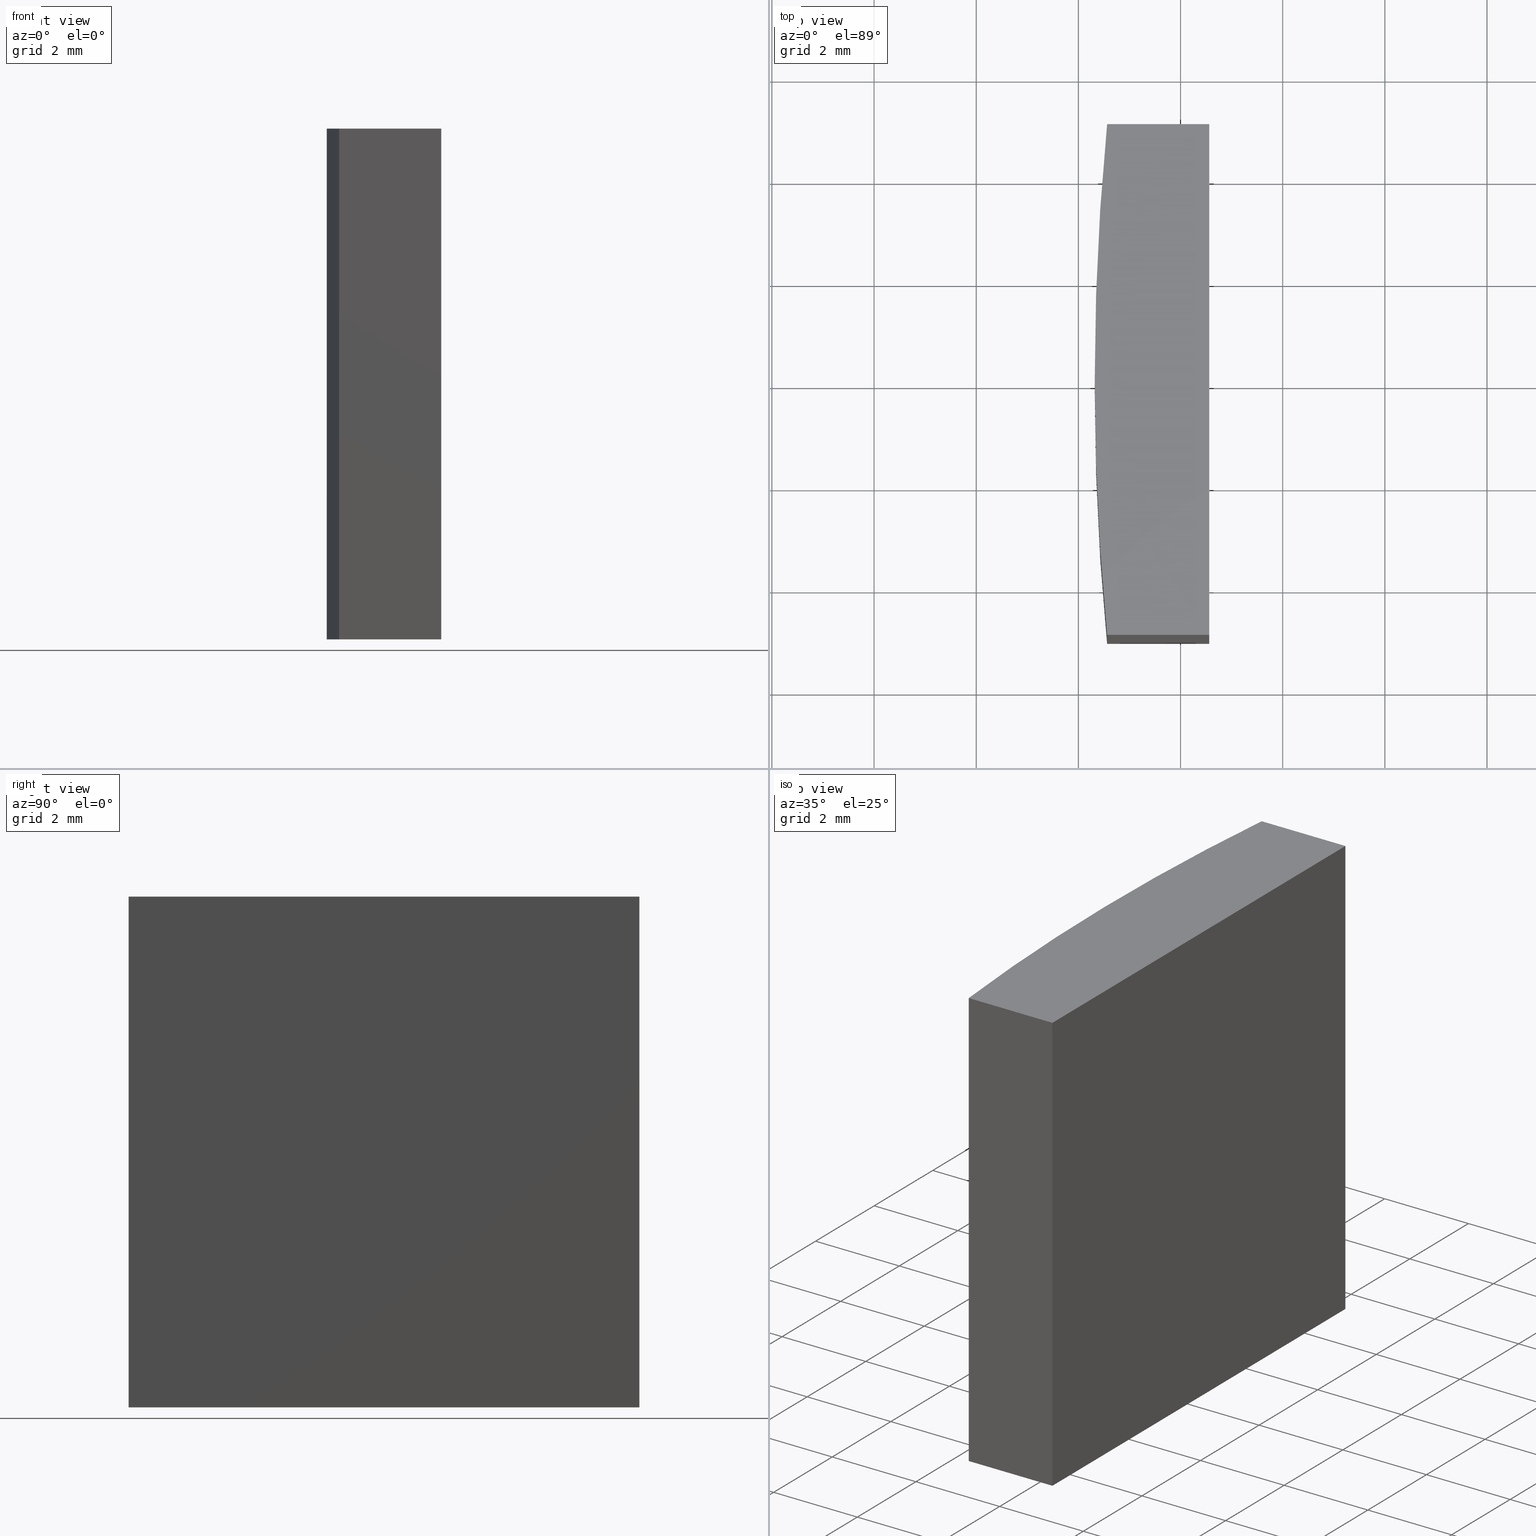
[diagram: canonical four-view strip — front | top / right | iso, engineering-drawing reading convention]
A machine part, canonical four-view strip (front | top / right | iso — engineering-drawing reading convention). The complete STEP part file that produces these views, byte-faithful:
ISO-10303-21;
HEADER;
FILE_DESCRIPTION (( 'STEP AP203' ),
    '1' );
FILE_NAME ('155522.STEP',
    '2024-05-13T03:08:03',
    ( '' ),
    ( '' ),
    'SwSTEP 2.0',
    'SolidWorks 2020',
    '' );
FILE_SCHEMA (( 'CONFIG_CONTROL_DESIGN' ));
ENDSEC;

DATA;
#1 = EDGE_CURVE ( 'NONE', #37, #246, #183, .T. ) ;
#2 = VECTOR ( 'NONE', #259, 1000.000000000000000 ) ;
#3 = AXIS2_PLACEMENT_3D ( 'NONE', #217, #176, #85 ) ;
#4 = CARTESIAN_POINT ( 'NONE',  ( -51.43755826242143314, -5.000000000000000888, 10.00000000000000000 ) ) ;
#5 = CC_DESIGN_PERSON_AND_ORGANIZATION_ASSIGNMENT ( #114, #35, ( #274 ) ) ;
#6 = LINE ( 'NONE', #200, #148 ) ;
#7 = CARTESIAN_POINT ( 'NONE',  ( -51.67999999999999972, 0.000000000000000000, 10.00000000000000000 ) ) ;
#8 = AXIS2_PLACEMENT_3D ( 'NONE', #173, #63, #89 ) ;
#9 = CARTESIAN_POINT ( 'NONE',  ( 0.000000000000000000, 0.000000000000000000, 10.00000000000000000 ) ) ;
#10 = APPROVAL_ROLE ( '' ) ;
#11 = DIRECTION ( 'NONE',  ( -0.000000000000000000, -0.000000000000000000, -1.000000000000000000 ) ) ;
#12 = DATE_TIME_ROLE ( 'classification_date' ) ;
#13 = EDGE_LOOP ( 'NONE', ( #121, #253, #58, #181 ) ) ;
#14 = PERSON_AND_ORGANIZATION ( #196, #210 ) ;
#15 = ORIENTED_EDGE ( 'NONE', *, *, #216, .T. ) ;
#16 = ORIENTED_EDGE ( 'NONE', *, *, #139, .T. ) ;
#17 = DATE_TIME_ROLE ( 'creation_date' ) ;
#18 = VERTEX_POINT ( 'NONE', #145 ) ;
#19 = CC_DESIGN_APPROVAL ( #254, ( #56 ) ) ;
#20 = ADVANCED_BREP_SHAPE_REPRESENTATION ( '155522', ( #47, #23 ), #68 ) ;
#21 = DIRECTION ( 'NONE',  ( 0.000000000000000000, 0.000000000000000000, 1.000000000000000000 ) ) ;
#22 = APPROVAL ( #161, 'δָ��' ) ;
#23 = AXIS2_PLACEMENT_3D ( 'NONE', #227, #21, #103 ) ;
#24 = LINE ( 'NONE', #4, #99 ) ;
#25 = CARTESIAN_POINT ( 'NONE',  ( -51.43755826242143314, 5.000000000000000888, 10.00000000000000000 ) ) ;
#26 = CARTESIAN_POINT ( 'NONE',  ( 0.000000000000000000, 0.000000000000000000, 10.00000000000000000 ) ) ;
#27 = PLANE ( 'NONE',  #250 ) ;
#28 = CALENDAR_DATE ( 2024, 13, 5 ) ;
#29 = CARTESIAN_POINT ( 'NONE',  ( -51.43755826242143314, 5.000000000000000888, 10.00000000000000000 ) ) ;
#30 = ADVANCED_FACE ( 'NONE', ( #53 ), #198, .T. ) ;
#31 = CALENDAR_DATE ( 2024, 13, 5 ) ;
#32 = EDGE_LOOP ( 'NONE', ( #168, #73, #206, #243 ) ) ;
#33 = ORIENTED_EDGE ( 'NONE', *, *, #216, .F. ) ;
#34 = LOCAL_TIME ( 11, 8, 3.000000000000000000, #122 ) ;
#35 = PERSON_AND_ORGANIZATION_ROLE ( 'creator' ) ;
#36 = ADVANCED_FACE ( 'NONE', ( #110 ), #174, .F. ) ;
#37 = VERTEX_POINT ( 'NONE', #48 ) ;
#38 = DATE_AND_TIME ( #31, #249 ) ;
#39 = ORIENTED_EDGE ( 'NONE', *, *, #65, .F. ) ;
#40 = EDGE_CURVE ( 'NONE', #105, #76, #203, .T. ) ;
#41 = CARTESIAN_POINT ( 'NONE',  ( -51.43755826242143314, -5.000000000000000888, 10.00000000000000000 ) ) ;
#42 = DIRECTION ( 'NONE',  ( 0.000000000000000000, 0.000000000000000000, 1.000000000000000000 ) ) ;
#43 = VECTOR ( 'NONE', #52, 1000.000000000000000 ) ;
#44 = CARTESIAN_POINT ( 'NONE',  ( -51.43755826242143314, 5.000000000000000888, 0.000000000000000000 ) ) ;
#45 = EDGE_CURVE ( 'NONE', #271, #140, #160, .T. ) ;
#46 = FACE_OUTER_BOUND ( 'NONE', #266, .T. ) ;
#47 = MANIFOLD_SOLID_BREP ( '͹̨-����1', #111 ) ;
#48 = CARTESIAN_POINT ( 'NONE',  ( -49.43755826242143314, 5.000000000000000888, 10.00000000000000000 ) ) ;
#49 = EDGE_CURVE ( 'NONE', #76, #207, #213, .T. ) ;
#50 = DIRECTION ( 'NONE',  ( 1.000000000000000000, 0.000000000000000000, 0.000000000000000000 ) ) ;
#51 = APPROVAL_STATUS ( 'not_yet_approved' ) ;
#52 = DIRECTION ( 'NONE',  ( -0.000000000000000000, 1.000000000000000000, -0.000000000000000000 ) ) ;
#53 = FACE_OUTER_BOUND ( 'NONE', #91, .T. ) ;
#54 = EDGE_CURVE ( 'NONE', #271, #105, #129, .T. ) ;
#55 = ORIENTED_EDGE ( 'NONE', *, *, #45, .T. ) ;
#56 = PRODUCT_DEFINITION_FORMATION_WITH_SPECIFIED_SOURCE ( '�κ�', '', #187, .NOT_KNOWN. ) ;
#57 = APPROVAL_DATE_TIME ( #223, #22 ) ;
#58 = ORIENTED_EDGE ( 'NONE', *, *, #257, .F. ) ;
#59 =( LENGTH_UNIT ( ) NAMED_UNIT ( * ) SI_UNIT ( .MILLI., .METRE. ) );
#60 = LINE ( 'NONE', #167, #131 ) ;
#61 = VECTOR ( 'NONE', #78, 1000.000000000000000 ) ;
#62 = DIRECTION ( 'NONE',  ( -1.000000000000000000, 0.000000000000000000, 0.000000000000000000 ) ) ;
#63 = DIRECTION ( 'NONE',  ( 0.000000000000000000, 0.000000000000000000, 1.000000000000000000 ) ) ;
#64 = CARTESIAN_POINT ( 'NONE',  ( -49.43755826242143314, -5.000000000000000888, 0.000000000000000000 ) ) ;
#65 = EDGE_CURVE ( 'NONE', #18, #267, #24, .T. ) ;
#66 = DIRECTION ( 'NONE',  ( 0.000000000000000000, 1.000000000000000000, 0.000000000000000000 ) ) ;
#67 = APPROVAL_STATUS ( 'not_yet_approved' ) ;
#68 =( GEOMETRIC_REPRESENTATION_CONTEXT ( 3 ) GLOBAL_UNCERTAINTY_ASSIGNED_CONTEXT ( ( #272 ) ) GLOBAL_UNIT_ASSIGNED_CONTEXT ( ( #59, #273, #170 ) ) REPRESENTATION_CONTEXT ( 'NONE', 'WORKASPACE' ) );
#69 = CARTESIAN_POINT ( 'NONE',  ( -49.43755826242143314, 5.000000000000000888, 10.00000000000000000 ) ) ;
#70 = AXIS2_PLACEMENT_3D ( 'NONE', #9, #152, #134 ) ;
#71 = APPROVAL_DATE_TIME ( #219, #254 ) ;
#72 = ORIENTED_EDGE ( 'NONE', *, *, #124, .T. ) ;
#73 = ORIENTED_EDGE ( 'NONE', *, *, #45, .F. ) ;
#74 = ORIENTED_EDGE ( 'NONE', *, *, #139, .F. ) ;
#75 = LOCAL_TIME ( 11, 8, 3.000000000000000000, #265 ) ;
#76 = VERTEX_POINT ( 'NONE', #108 ) ;
#77 = ADVANCED_FACE ( 'NONE', ( #46 ), #154, .T. ) ;
#78 = DIRECTION ( 'NONE',  ( -0.000000000000000000, -0.000000000000000000, -1.000000000000000000 ) ) ;
#79 = MECHANICAL_CONTEXT ( 'NONE', #109, 'mechanical' ) ;
#80 = PRODUCT_RELATED_PRODUCT_CATEGORY ( 'detail', '', ( #187 ) ) ;
#81 = ADVANCED_FACE ( 'NONE', ( #218 ), #153, .F. ) ;
#82 = DIRECTION ( 'NONE',  ( 1.000000000000000000, 0.000000000000000000, 0.000000000000000000 ) ) ;
#83 = DIRECTION ( 'NONE',  ( -1.000000000000000000, -0.000000000000000000, -0.000000000000000000 ) ) ;
#84 = DESIGN_CONTEXT ( 'detailed design', #231, 'design' ) ;
#85 = DIRECTION ( 'NONE',  ( 1.000000000000000000, 0.000000000000000000, 0.000000000000000000 ) ) ;
#86 = CC_DESIGN_PERSON_AND_ORGANIZATION_ASSIGNMENT ( #101, #169, ( #187 ) ) ;
#87 = CARTESIAN_POINT ( 'NONE',  ( -51.43755826242143314, -5.000000000000000888, 0.000000000000000000 ) ) ;
#88 = COORDINATED_UNIVERSAL_TIME_OFFSET ( 8, 0, .AHEAD. ) ;
#89 = DIRECTION ( 'NONE',  ( 1.000000000000000000, 0.000000000000000000, 0.000000000000000000 ) ) ;
#90 = APPROVAL_PERSON_ORGANIZATION ( #191, #22, #221 ) ;
#91 = EDGE_LOOP ( 'NONE', ( #189, #72, #162, #115, #220 ) ) ;
#92 = COORDINATED_UNIVERSAL_TIME_OFFSET ( 8, 0, .AHEAD. ) ;
#93 = CC_DESIGN_DATE_AND_TIME_ASSIGNMENT ( #38, #12, ( #130 ) ) ;
#94 = VERTEX_POINT ( 'NONE', #64 ) ;
#95 = PRODUCT_DEFINITION_SHAPE ( 'NONE', 'NONE',  #274 ) ;
#96 = DIRECTION ( 'NONE',  ( -0.000000000000000000, -0.000000000000000000, -1.000000000000000000 ) ) ;
#97 = DIRECTION ( 'NONE',  ( -0.000000000000000000, 1.000000000000000000, -0.000000000000000000 ) ) ;
#98 = EDGE_LOOP ( 'NONE', ( #120, #224, #143, #74, #209 ) ) ;
#99 = VECTOR ( 'NONE', #82, 1000.000000000000000 ) ;
#100 = EDGE_CURVE ( 'NONE', #94, #246, #112, .T. ) ;
#101 = PERSON_AND_ORGANIZATION ( #196, #210 ) ;
#102 = APPLICATION_PROTOCOL_DEFINITION ( 'international standard', 'config_control_design', 1994, #231 ) ;
#103 = DIRECTION ( 'NONE',  ( 1.000000000000000000, 0.000000000000000000, 0.000000000000000000 ) ) ;
#104 = LOCAL_TIME ( 11, 8, 3.000000000000000000, #117 ) ;
#105 = VERTEX_POINT ( 'NONE', #255 ) ;
#106 = VECTOR ( 'NONE', #215, 1000.000000000000000 ) ;
#107 = DIRECTION ( 'NONE',  ( 1.000000000000000000, 0.000000000000000000, -0.000000000000000000 ) ) ;
#108 = CARTESIAN_POINT ( 'NONE',  ( -51.67999999999999972, 0.000000000000000000, 0.000000000000000000 ) ) ;
#109 = APPLICATION_CONTEXT ( 'configuration controlled 3d designs of mechanical parts and assemblies' ) ;
#110 = FACE_OUTER_BOUND ( 'NONE', #32, .T. ) ;
#111 = CLOSED_SHELL ( 'NONE', ( #144, #77, #81, #116, #36, #30, #268 ) ) ;
#112 = LINE ( 'NONE', #234, #43 ) ;
#113 = DIRECTION ( 'NONE',  ( 0.000000000000000000, -1.000000000000000000, 0.000000000000000000 ) ) ;
#114 = PERSON_AND_ORGANIZATION ( #196, #210 ) ;
#115 = ORIENTED_EDGE ( 'NONE', *, *, #257, .T. ) ;
#116 = ADVANCED_FACE ( 'NONE', ( #261 ), #27, .F. ) ;
#117 = COORDINATED_UNIVERSAL_TIME_OFFSET ( 8, 0, .AHEAD. ) ;
#118 = ORIENTED_EDGE ( 'NONE', *, *, #49, .T. ) ;
#119 = DATE_AND_TIME ( #28, #75 ) ;
#120 = ORIENTED_EDGE ( 'NONE', *, *, #193, .F. ) ;
#121 = ORIENTED_EDGE ( 'NONE', *, *, #100, .T. ) ;
#122 = COORDINATED_UNIVERSAL_TIME_OFFSET ( 8, 0, .AHEAD. ) ;
#123 = ORIENTED_EDGE ( 'NONE', *, *, #124, .F. ) ;
#124 = EDGE_CURVE ( 'NONE', #105, #18, #197, .T. ) ;
#125 = APPLICATION_PROTOCOL_DEFINITION ( 'international standard', 'config_control_design', 1994, #109 ) ;
#126 = APPROVAL_PERSON_ORGANIZATION ( #205, #254, #141 ) ;
#127 = AXIS2_PLACEMENT_3D ( 'NONE', #29, #113, #233 ) ;
#128 = CARTESIAN_POINT ( 'NONE',  ( -49.43755826242143314, 5.000000000000000888, 0.000000000000000000 ) ) ;
#129 = CIRCLE ( 'NONE', #3, 51.67999999999999972 ) ;
#130 = SECURITY_CLASSIFICATION ( '', '', #240 ) ;
#131 = VECTOR ( 'NONE', #97, 1000.000000000000000 ) ;
#132 = FACE_OUTER_BOUND ( 'NONE', #164, .T. ) ;
#133 = EDGE_CURVE ( 'NONE', #37, #271, #232, .T. ) ;
#134 = DIRECTION ( 'NONE',  ( 1.000000000000000000, 0.000000000000000000, 0.000000000000000000 ) ) ;
#135 = CARTESIAN_POINT ( 'NONE',  ( -51.43755826242143314, 5.000000000000000888, 10.00000000000000000 ) ) ;
#136 = CYLINDRICAL_SURFACE ( 'NONE', #262, 51.67999999999999972 ) ;
#137 = PERSON_AND_ORGANIZATION_ROLE ( 'design_supplier' ) ;
#138 = DIRECTION ( 'NONE',  ( 0.000000000000000000, 0.000000000000000000, 1.000000000000000000 ) ) ;
#139 = EDGE_CURVE ( 'NONE', #207, #94, #239, .T. ) ;
#140 = VERTEX_POINT ( 'NONE', #44 ) ;
#141 = APPROVAL_ROLE ( '' ) ;
#142 = APPROVAL_PERSON_ORGANIZATION ( #182, #212, #10 ) ;
#143 = ORIENTED_EDGE ( 'NONE', *, *, #100, .F. ) ;
#144 = ADVANCED_FACE ( 'NONE', ( #132 ), #136, .T. ) ;
#145 = CARTESIAN_POINT ( 'NONE',  ( -51.43755826242143314, -5.000000000000000888, 10.00000000000000000 ) ) ;
#146 = LINE ( 'NONE', #41, #61 ) ;
#147 = VECTOR ( 'NONE', #269, 1000.000000000000000 ) ;
#148 = VECTOR ( 'NONE', #83, 1000.000000000000000 ) ;
#149 = LINE ( 'NONE', #171, #147 ) ;
#150 = DIRECTION ( 'NONE',  ( 1.000000000000000000, 0.000000000000000000, -0.000000000000000000 ) ) ;
#151 = EDGE_CURVE ( 'NONE', #246, #140, #6, .T. ) ;
#152 = DIRECTION ( 'NONE',  ( 0.000000000000000000, 0.000000000000000000, 1.000000000000000000 ) ) ;
#153 = PLANE ( 'NONE',  #158 ) ;
#154 = CYLINDRICAL_SURFACE ( 'NONE', #166, 51.67999999999999972 ) ;
#155 = DIRECTION ( 'NONE',  ( 0.000000000000000000, 0.000000000000000000, 1.000000000000000000 ) ) ;
#156 = CIRCLE ( 'NONE', #201, 51.67999999999999972 ) ;
#157 = CALENDAR_DATE ( 2024, 13, 5 ) ;
#158 = AXIS2_PLACEMENT_3D ( 'NONE', #178, #66, #258 ) ;
#159 = CC_DESIGN_PERSON_AND_ORGANIZATION_ASSIGNMENT ( #175, #137, ( #56 ) ) ;
#160 = LINE ( 'NONE', #135, #228 ) ;
#161 = APPROVAL_STATUS ( 'not_yet_approved' ) ;
#162 = ORIENTED_EDGE ( 'NONE', *, *, #65, .T. ) ;
#163 = APPROVAL_DATE_TIME ( #119, #212 ) ;
#164 = EDGE_LOOP ( 'NONE', ( #123, #222, #118, #33 ) ) ;
#165 = ORIENTED_EDGE ( 'NONE', *, *, #252, .F. ) ;
#166 = AXIS2_PLACEMENT_3D ( 'NONE', #172, #256, #62 ) ;
#167 = CARTESIAN_POINT ( 'NONE',  ( -49.43755826242143314, 5.000000000000000888, 10.00000000000000000 ) ) ;
#168 = ORIENTED_EDGE ( 'NONE', *, *, #151, .T. ) ;
#169 = PERSON_AND_ORGANIZATION_ROLE ( 'design_owner' ) ;
#170 =( NAMED_UNIT ( * ) SI_UNIT ( $, .STERADIAN. ) SOLID_ANGLE_UNIT ( ) );
#171 = CARTESIAN_POINT ( 'NONE',  ( -49.43755826242143314, -5.000000000000000888, 10.00000000000000000 ) ) ;
#172 = CARTESIAN_POINT ( 'NONE',  ( 0.000000000000000000, 0.000000000000000000, 10.00000000000000000 ) ) ;
#173 = CARTESIAN_POINT ( 'NONE',  ( 0.000000000000000000, 0.000000000000000000, 0.000000000000000000 ) ) ;
#174 = PLANE ( 'NONE',  #127 ) ;
#175 = PERSON_AND_ORGANIZATION ( #196, #210 ) ;
#176 = DIRECTION ( 'NONE',  ( 0.000000000000000000, 0.000000000000000000, 1.000000000000000000 ) ) ;
#177 = PERSON_AND_ORGANIZATION_ROLE ( 'creator' ) ;
#178 = CARTESIAN_POINT ( 'NONE',  ( -51.43755826242143314, -5.000000000000000888, 10.00000000000000000 ) ) ;
#179 = VECTOR ( 'NONE', #50, 1000.000000000000000 ) ;
#180 = AXIS2_PLACEMENT_3D ( 'NONE', #236, #138, #107 ) ;
#181 = ORIENTED_EDGE ( 'NONE', *, *, #252, .T. ) ;
#182 = PERSON_AND_ORGANIZATION ( #196, #210 ) ;
#183 = LINE ( 'NONE', #241, #190 ) ;
#184 = CC_DESIGN_PERSON_AND_ORGANIZATION_ASSIGNMENT ( #14, #177, ( #56 ) ) ;
#185 = PERSON_AND_ORGANIZATION_ROLE ( 'classification_officer' ) ;
#186 = ORIENTED_EDGE ( 'NONE', *, *, #54, .F. ) ;
#187 = PRODUCT ( '155522', '155522', '', ( #79 ) ) ;
#188 = DIRECTION ( 'NONE',  ( 1.000000000000000000, 0.000000000000000000, 0.000000000000000000 ) ) ;
#189 = ORIENTED_EDGE ( 'NONE', *, *, #54, .T. ) ;
#190 = VECTOR ( 'NONE', #96, 1000.000000000000000 ) ;
#191 = PERSON_AND_ORGANIZATION ( #196, #210 ) ;
#192 = CARTESIAN_POINT ( 'NONE',  ( 0.000000000000000000, 0.000000000000000000, 0.000000000000000000 ) ) ;
#193 = EDGE_CURVE ( 'NONE', #140, #76, #156, .T. ) ;
#194 = DIRECTION ( 'NONE',  ( 0.000000000000000000, 0.000000000000000000, 1.000000000000000000 ) ) ;
#195 = CC_DESIGN_SECURITY_CLASSIFICATION ( #130, ( #56 ) ) ;
#196 = PERSON ( 'δָ��', 'δָ��', 'δָ��', ('δָ��'), ('δָ��'), ('δָ��') ) ;
#197 = CIRCLE ( 'NONE', #70, 51.67999999999999972 ) ;
#198 = PLANE ( 'NONE',  #180 ) ;
#199 = DIRECTION ( 'NONE',  ( -1.000000000000000000, 0.000000000000000000, 0.000000000000000000 ) ) ;
#200 = CARTESIAN_POINT ( 'NONE',  ( -51.43755826242143314, 5.000000000000000888, 0.000000000000000000 ) ) ;
#201 = AXIS2_PLACEMENT_3D ( 'NONE', #192, #42, #188 ) ;
#202 = DIRECTION ( 'NONE',  ( -1.000000000000000000, 0.000000000000000000, 0.000000000000000000 ) ) ;
#203 = LINE ( 'NONE', #7, #2 ) ;
#204 = ORIENTED_EDGE ( 'NONE', *, *, #40, .F. ) ;
#205 = PERSON_AND_ORGANIZATION ( #196, #210 ) ;
#206 = ORIENTED_EDGE ( 'NONE', *, *, #133, .F. ) ;
#207 = VERTEX_POINT ( 'NONE', #225 ) ;
#208 = DATE_AND_TIME ( #263, #34 ) ;
#209 = ORIENTED_EDGE ( 'NONE', *, *, #49, .F. ) ;
#210 = ORGANIZATION ( 'δָ��', 'δָ��', '' ) ;
#211 = PLANE ( 'NONE',  #270 ) ;
#212 = APPROVAL ( #51, 'δָ��' ) ;
#213 = CIRCLE ( 'NONE', #8, 51.67999999999999972 ) ;
#214 = DIRECTION ( 'NONE',  ( -0.000000000000000000, -0.000000000000000000, -1.000000000000000000 ) ) ;
#215 = DIRECTION ( 'NONE',  ( -1.000000000000000000, -0.000000000000000000, -0.000000000000000000 ) ) ;
#216 = EDGE_CURVE ( 'NONE', #18, #207, #146, .T. ) ;
#217 = CARTESIAN_POINT ( 'NONE',  ( 0.000000000000000000, 0.000000000000000000, 10.00000000000000000 ) ) ;
#218 = FACE_OUTER_BOUND ( 'NONE', #264, .T. ) ;
#219 = DATE_AND_TIME ( #157, #104 ) ;
#220 = ORIENTED_EDGE ( 'NONE', *, *, #133, .T. ) ;
#221 = APPROVAL_ROLE ( '' ) ;
#222 = ORIENTED_EDGE ( 'NONE', *, *, #40, .T. ) ;
#223 = DATE_AND_TIME ( #235, #237 ) ;
#224 = ORIENTED_EDGE ( 'NONE', *, *, #151, .F. ) ;
#225 = CARTESIAN_POINT ( 'NONE',  ( -51.43755826242143314, -5.000000000000000888, 0.000000000000000000 ) ) ;
#226 = CC_DESIGN_DATE_AND_TIME_ASSIGNMENT ( #208, #17, ( #274 ) ) ;
#227 = CARTESIAN_POINT ( 'NONE',  ( 0.000000000000000000, 0.000000000000000000, 0.000000000000000000 ) ) ;
#228 = VECTOR ( 'NONE', #11, 1000.000000000000000 ) ;
#229 = CARTESIAN_POINT ( 'NONE',  ( -49.43755826242143314, -5.000000000000000888, 10.00000000000000000 ) ) ;
#230 = CC_DESIGN_APPROVAL ( #212, ( #130 ) ) ;
#231 = APPLICATION_CONTEXT ( 'configuration controlled 3d designs of mechanical parts and assemblies' ) ;
#232 = LINE ( 'NONE', #25, #106 ) ;
#233 = DIRECTION ( 'NONE',  ( 0.000000000000000000, -0.000000000000000000, -1.000000000000000000 ) ) ;
#234 = CARTESIAN_POINT ( 'NONE',  ( -49.43755826242143314, 5.000000000000000888, 0.000000000000000000 ) ) ;
#235 = CALENDAR_DATE ( 2024, 13, 5 ) ;
#236 = CARTESIAN_POINT ( 'NONE',  ( 0.000000000000000000, 0.000000000000000000, 10.00000000000000000 ) ) ;
#237 = LOCAL_TIME ( 11, 8, 3.000000000000000000, #88 ) ;
#238 = PERSON_AND_ORGANIZATION ( #196, #210 ) ;
#239 = LINE ( 'NONE', #87, #179 ) ;
#240 = SECURITY_CLASSIFICATION_LEVEL ( 'unclassified' ) ;
#241 = CARTESIAN_POINT ( 'NONE',  ( -49.43755826242143314, 5.000000000000000888, 10.00000000000000000 ) ) ;
#242 = CC_DESIGN_PERSON_AND_ORGANIZATION_ASSIGNMENT ( #238, #185, ( #130 ) ) ;
#243 = ORIENTED_EDGE ( 'NONE', *, *, #1, .T. ) ;
#244 = CC_DESIGN_APPROVAL ( #22, ( #274 ) ) ;
#245 = ORIENTED_EDGE ( 'NONE', *, *, #193, .T. ) ;
#246 = VERTEX_POINT ( 'NONE', #128 ) ;
#247 = CARTESIAN_POINT ( 'NONE',  ( -51.43755826242143314, 5.000000000000000888, 10.00000000000000000 ) ) ;
#248 = FACE_OUTER_BOUND ( 'NONE', #98, .T. ) ;
#249 = LOCAL_TIME ( 11, 8, 3.000000000000000000, #92 ) ;
#250 = AXIS2_PLACEMENT_3D ( 'NONE', #69, #202, #155 ) ;
#251 = CARTESIAN_POINT ( 'NONE',  ( 0.000000000000000000, 0.000000000000000000, 0.000000000000000000 ) ) ;
#252 = EDGE_CURVE ( 'NONE', #267, #94, #149, .T. ) ;
#253 = ORIENTED_EDGE ( 'NONE', *, *, #1, .F. ) ;
#254 = APPROVAL ( #67, 'δָ��' ) ;
#255 = CARTESIAN_POINT ( 'NONE',  ( -51.67999999999999972, 0.000000000000000000, 10.00000000000000000 ) ) ;
#256 = DIRECTION ( 'NONE',  ( -0.000000000000000000, -0.000000000000000000, -1.000000000000000000 ) ) ;
#257 = EDGE_CURVE ( 'NONE', #267, #37, #60, .T. ) ;
#258 = DIRECTION ( 'NONE',  ( 0.000000000000000000, -0.000000000000000000, 1.000000000000000000 ) ) ;
#259 = DIRECTION ( 'NONE',  ( -0.000000000000000000, -0.000000000000000000, -1.000000000000000000 ) ) ;
#260 = SHAPE_DEFINITION_REPRESENTATION ( #95, #20 ) ;
#261 = FACE_OUTER_BOUND ( 'NONE', #13, .T. ) ;
#262 = AXIS2_PLACEMENT_3D ( 'NONE', #26, #214, #199 ) ;
#263 = CALENDAR_DATE ( 2024, 13, 5 ) ;
#264 = EDGE_LOOP ( 'NONE', ( #16, #165, #39, #15 ) ) ;
#265 = COORDINATED_UNIVERSAL_TIME_OFFSET ( 8, 0, .AHEAD. ) ;
#266 = EDGE_LOOP ( 'NONE', ( #204, #186, #55, #245 ) ) ;
#267 = VERTEX_POINT ( 'NONE', #229 ) ;
#268 = ADVANCED_FACE ( 'NONE', ( #248 ), #211, .F. ) ;
#269 = DIRECTION ( 'NONE',  ( -0.000000000000000000, -0.000000000000000000, -1.000000000000000000 ) ) ;
#270 = AXIS2_PLACEMENT_3D ( 'NONE', #251, #194, #150 ) ;
#271 = VERTEX_POINT ( 'NONE', #247 ) ;
#272 = UNCERTAINTY_MEASURE_WITH_UNIT (LENGTH_MEASURE( 1.000000000000000082E-05 ), #59, 'distance_accuracy_value', 'NONE');
#273 =( NAMED_UNIT ( * ) PLANE_ANGLE_UNIT ( ) SI_UNIT ( $, .RADIAN. ) );
#274 = PRODUCT_DEFINITION ( 'δ֪', '', #56, #84 ) ;
ENDSEC;
END-ISO-10303-21;
